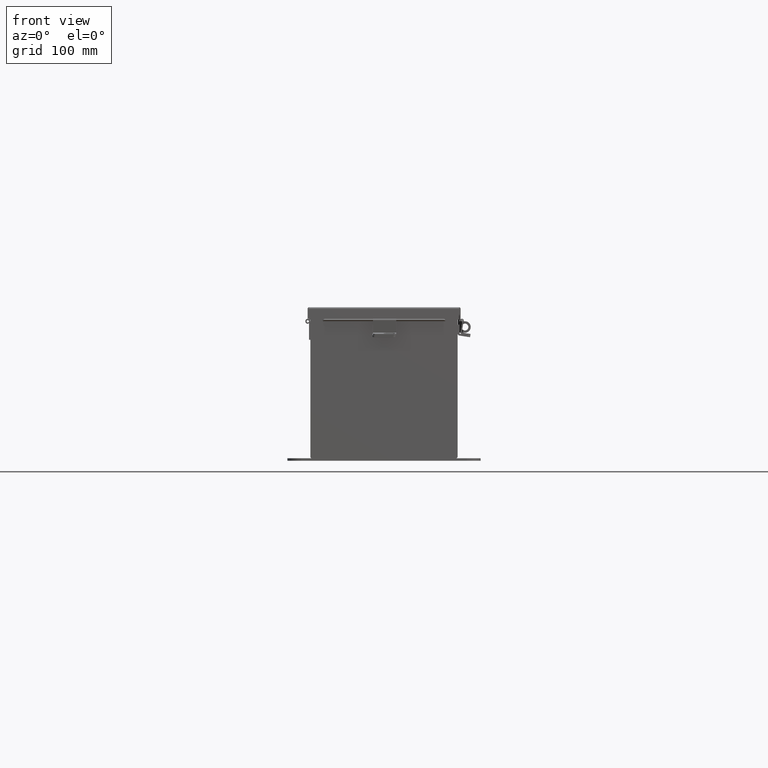
[diagram: clean part render]
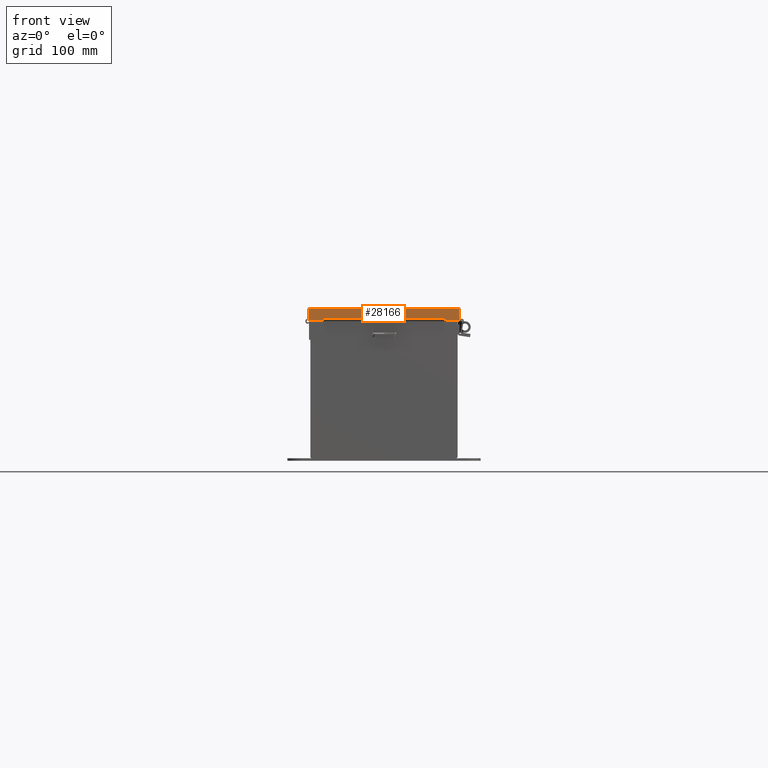
[diagram: same view with one face highlighted and labeled with its STEP entity id]
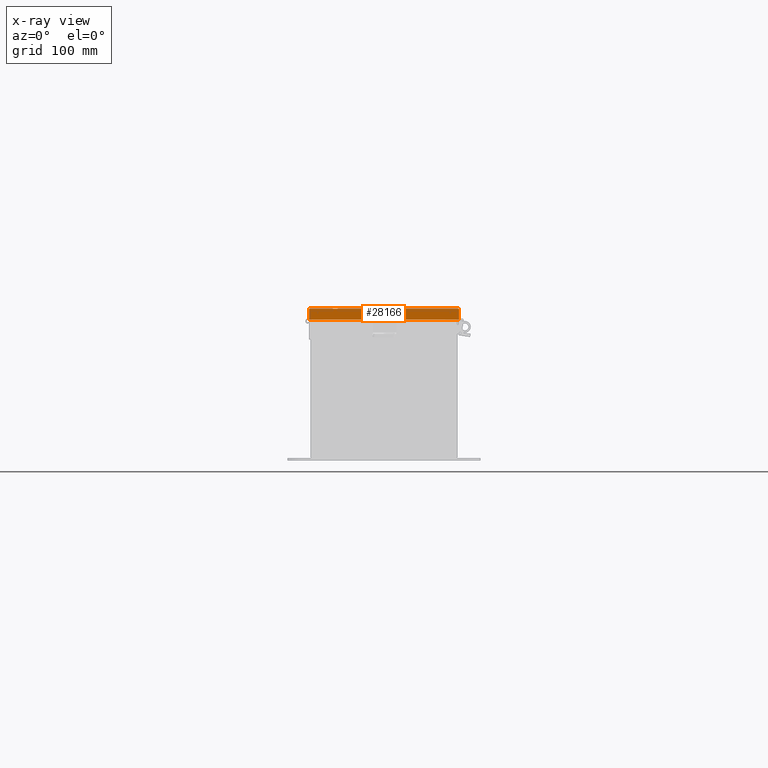
[diagram: x-ray of the same camera — body ghosted, the highlighted face saturated]
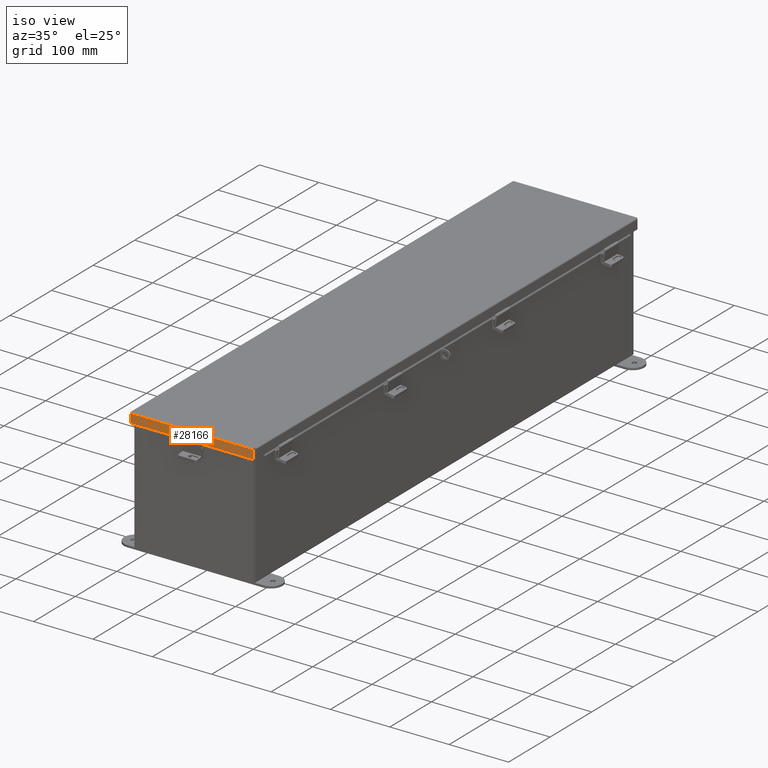
[diagram: same view with one face highlighted and labeled with its STEP entity id]
A machine part, front view. The second image highlights one B-rep face of the part: STEP entity #28166.
The next image is the same camera in x-ray: the body ghosted, the highlighted face saturated — about 0% of this face is hidden behind the body in this view.
A second angle (iso view) of the same face is appended — the face is thin or edge-on in the first view.
In plain terms, the highlighted planar face has unit normal (0, 1, -0).
Its self-contained STEP definition (entity closure, byte-faithful):
#45 = VERTEX_POINT ( 'NONE', #2577 ) ;
#497 = PLANE ( 'NONE',  #6199 ) ;
#612 = DIRECTION ( 'NONE',  ( 0.0000000000000000000, -3.569293475308470100E-015, 1.000000000000000000 ) ) ;
#667 = DIRECTION ( 'NONE',  ( 0.0000000000000000000, 1.401985044024297200E-013, 1.000000000000000000 ) ) ;
#734 = DIRECTION ( 'NONE',  ( -1.000000000000000000, -9.916370134130232300E-030, 8.216084191470988300E-018 ) ) ;
#771 = CARTESIAN_POINT ( 'NONE',  ( -1.387266559282633700E-017, -18.15624999999997200, 0.6123000000000005100 ) ) ;
#879 = CARTESIAN_POINT ( 'NONE',  ( 3.324478932188164900, -18.15624999999997900, 0.5967115427318804300 ) ) ;
#1012 = ORIENTED_EDGE ( 'NONE', *, *, #8097, .F. ) ;
#1151 = VERTEX_POINT ( 'NONE', #15280 ) ;
#1388 = DIRECTION ( 'NONE',  ( 0.0000000000000000000, -3.569293475308470100E-015, 1.000000000000000000 ) ) ;
#1429 = CARTESIAN_POINT ( 'NONE',  ( 4.074478932188196900, -18.15624999999997200, -6.447161265047661700E-014 ) ) ;
#1558 = LINE ( 'NONE', #3910, #24954 ) ;
#1586 = CARTESIAN_POINT ( 'NONE',  ( 4.074478932188196900, -18.15624999999997200, 0.01300000000000010700 ) ) ;
#2577 = CARTESIAN_POINT ( 'NONE',  ( -4.074478932188201300, -18.15624999999997200, 0.01300000000000010700 ) ) ;
#2722 = VERTEX_POINT ( 'NONE', #8661 ) ;
#3249 = DIRECTION ( 'NONE',  ( -1.000000000000000000, -9.867926313353067200E-030, -0.0000000000000000000 ) ) ;
#3374 = VECTOR ( 'NONE', #734, 39.37007874015748100 ) ;
#3531 = EDGE_LOOP ( 'NONE', ( #1012, #6062, #24922, #7227, #14550, #12438, #25822, #19976 ) ) ;
#3910 = CARTESIAN_POINT ( 'NONE',  ( -4.156250000000065700, -18.15624999999997200, 0.01300000000000010700 ) ) ;
#4188 = DIRECTION ( 'NONE',  ( -0.0000000000000000000, -3.569293475308470100E-015, 1.000000000000000000 ) ) ;
#4246 = CARTESIAN_POINT ( 'NONE',  ( -4.074478932188201300, -18.15624999999997200, 0.0000000000000000000 ) ) ;
#4657 = CARTESIAN_POINT ( 'NONE',  ( -1.387266559282633700E-017, -18.15624999999997200, 0.6123000000000005100 ) ) ;
#4737 = DIRECTION ( 'NONE',  ( -1.000000000000000000, -9.916370134130232300E-030, 8.216084191470988300E-018 ) ) ;
#5962 = VECTOR ( 'NONE', #6484, 39.37007874015748100 ) ;
#6062 = ORIENTED_EDGE ( 'NONE', *, *, #8172, .T. ) ;
#6199 = AXIS2_PLACEMENT_3D ( 'NONE', #20955, #14473, #612 ) ;
#6484 = DIRECTION ( 'NONE',  ( 1.401985044024329800E-013, -1.401985044024315600E-013, -1.000000000000000000 ) ) ;
#6714 = CARTESIAN_POINT ( 'NONE',  ( -3.324478932188175100, -18.15624999999997500, 0.6122999999999994000 ) ) ;
#6867 = CARTESIAN_POINT ( 'NONE',  ( 3.324478932188158700, -18.15624999999997200, 0.6123000000000005100 ) ) ;
#7227 = ORIENTED_EDGE ( 'NONE', *, *, #8230, .F. ) ;
#8097 = EDGE_CURVE ( 'NONE', #2722, #10968, #23929, .T. ) ;
#8103 = CARTESIAN_POINT ( 'NONE',  ( 3.324478932188164900, -18.15624999999997200, 0.5967115427318804300 ) ) ;
#8172 = EDGE_CURVE ( 'NONE', #2722, #12150, #21842, .T. ) ;
#8179 = EDGE_CURVE ( 'NONE', #45, #12150, #27759, .T. ) ;
#8230 = EDGE_CURVE ( 'NONE', #19555, #45, #1558, .T. ) ;
#8354 = EDGE_CURVE ( 'NONE', #19555, #1151, #10315, .T. ) ;
#8358 = EDGE_CURVE ( 'NONE', #1151, #10052, #20767, .T. ) ;
#8362 = EDGE_CURVE ( 'NONE', #23342, #10052, #27382, .T. ) ;
#8447 = EDGE_CURVE ( 'NONE', #10968, #23342, #17945, .T. ) ;
#8661 = CARTESIAN_POINT ( 'NONE',  ( -3.324478932188175100, -18.15624999999997200, 0.6122999999999994000 ) ) ;
#9252 = VECTOR ( 'NONE', #4737, 39.37007874015748100 ) ;
#9607 = VECTOR ( 'NONE', #1388, 39.37007874015748100 ) ;
#10052 = VERTEX_POINT ( 'NONE', #6867 ) ;
#10315 = LINE ( 'NONE', #1429, #9607 ) ;
#10739 = CARTESIAN_POINT ( 'NONE',  ( -4.074478932188206700, -18.15624999999997200, 0.6123000000000190500 ) ) ;
#10968 = VERTEX_POINT ( 'NONE', #28450 ) ;
#12150 = VERTEX_POINT ( 'NONE', #10739 ) ;
#12153 = VECTOR ( 'NONE', #26949, 39.37007874015748100 ) ;
#12438 = ORIENTED_EDGE ( 'NONE', *, *, #8358, .T. ) ;
#14473 = DIRECTION ( 'NONE',  ( 9.500978059604187200E-030, 1.000000000000000000, 3.569293475308470100E-015 ) ) ;
#14550 = ORIENTED_EDGE ( 'NONE', *, *, #8354, .T. ) ;
#15229 = VECTOR ( 'NONE', #4188, 39.37007874015748100 ) ;
#15280 = CARTESIAN_POINT ( 'NONE',  ( 4.074478932188190700, -18.15624999999997200, 0.6123000000000005100 ) ) ;
#17945 = LINE ( 'NONE', #28087, #12153 ) ;
#19555 = VERTEX_POINT ( 'NONE', #1586 ) ;
#19976 = ORIENTED_EDGE ( 'NONE', *, *, #8447, .F. ) ;
#20767 = LINE ( 'NONE', #771, #3374 ) ;
#20955 = CARTESIAN_POINT ( 'NONE',  ( 0.0000000000000000000, -18.15624999999997200, -6.447161265047661700E-014 ) ) ;
#21842 = LINE ( 'NONE', #4657, #9252 ) ;
#23342 = VERTEX_POINT ( 'NONE', #8103 ) ;
#23929 = LINE ( 'NONE', #6714, #5962 ) ;
#24922 = ORIENTED_EDGE ( 'NONE', *, *, #8179, .F. ) ;
#24954 = VECTOR ( 'NONE', #3249, 39.37007874015748100 ) ;
#25822 = ORIENTED_EDGE ( 'NONE', *, *, #8362, .F. ) ;
#25945 = VECTOR ( 'NONE', #667, 39.37007874015748100 ) ;
#25960 = FACE_OUTER_BOUND ( 'NONE', #3531, .T. ) ;
#26949 = DIRECTION ( 'NONE',  ( 1.000000000000000000, 9.917230119929380400E-030, -0.0000000000000000000 ) ) ;
#27382 = LINE ( 'NONE', #879, #25945 ) ;
#27759 = LINE ( 'NONE', #4246, #15229 ) ;
#28087 = CARTESIAN_POINT ( 'NONE',  ( -3.324478932188169400, -18.15624999999997900, 0.5967115427318804300 ) ) ;
#28166 = ADVANCED_FACE ( 'NONE', ( #25960 ), #497, .F. ) ;
#28450 = CARTESIAN_POINT ( 'NONE',  ( -3.324478932188167100, -18.15624999999997200, 0.5967115427318804300 ) ) ;